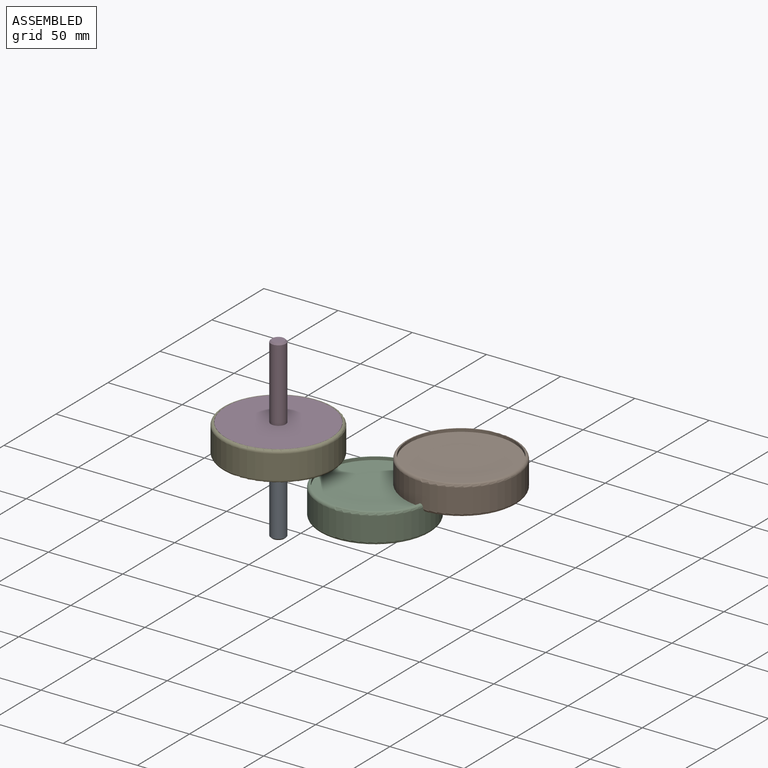
[diagram: assembled view]
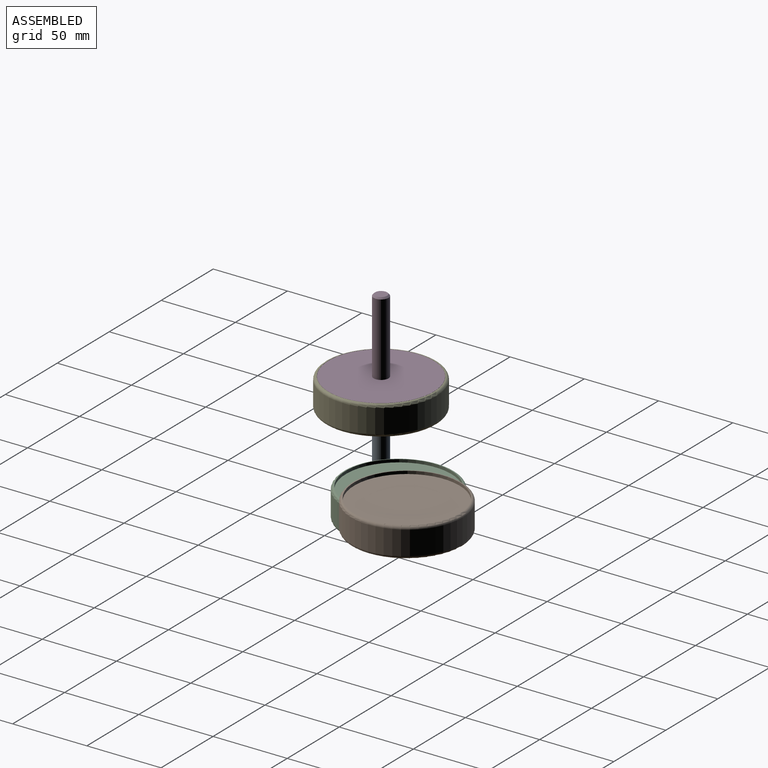
[diagram: assembled view, second angle]
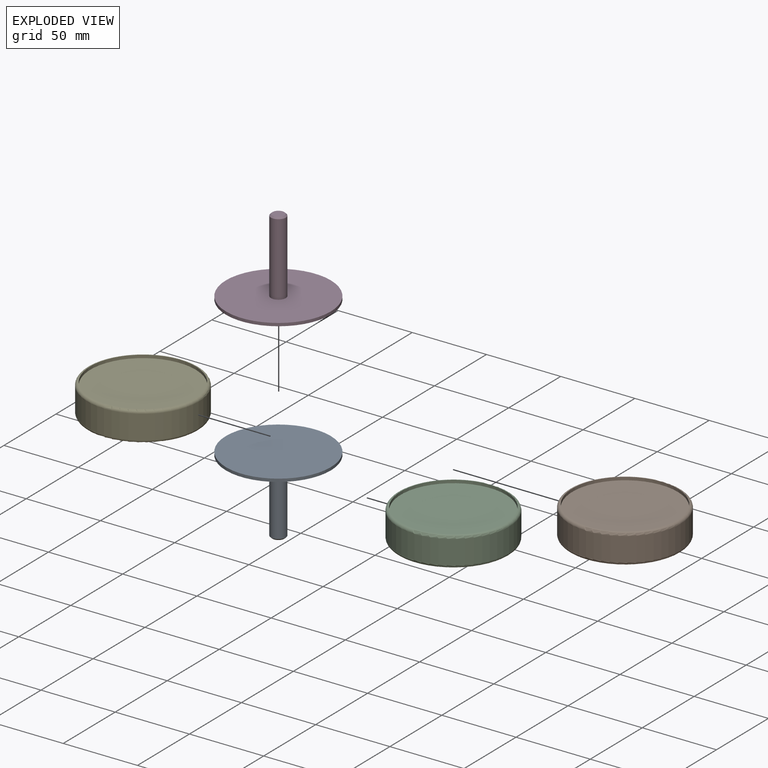
[diagram: exploded view]
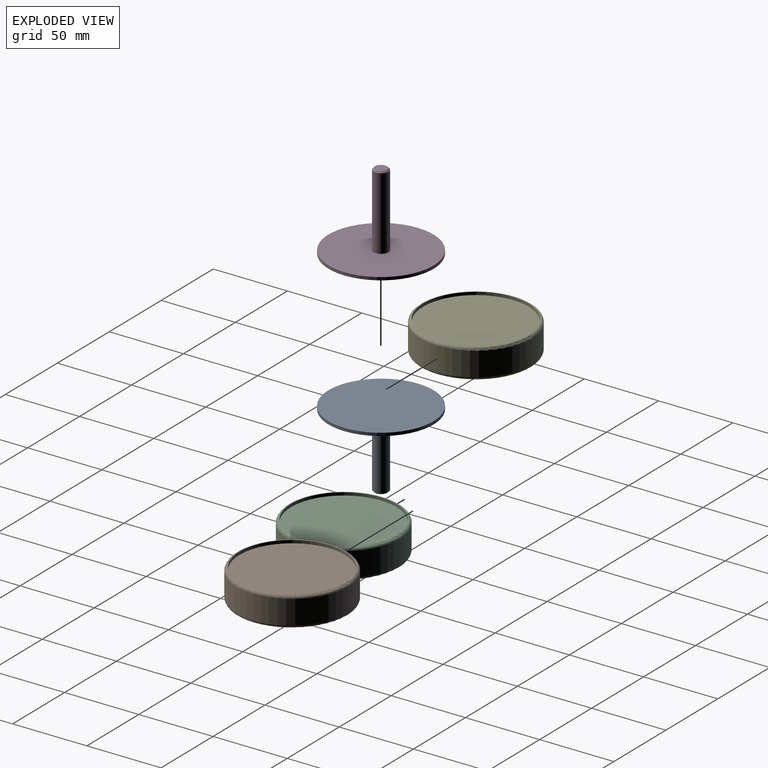
[diagram: exploded view, second angle]
ASSEMBLY  parts=3 mates=2
PART A: 6 faces, bbox 70.8x70.8x52 mm
  f0: cylinder r=35.38mm len=70.75mm, axis (0,0,-1), area 444.5mm2, adj f1,f2
  f1: plane 70.75x70.75mm, normal (0,0,1), area 3852.8mm2, adj f0,f3
  f2: plane 70.75x70.75mm, normal (0,0,-1), area 3931.4mm2, adj f0
  f3: cylinder r=5mm len=49mm, axis (0,0,-1), area 1539.4mm2, adj f1,f5
  f4: plane 8x8mm, normal (0,0,1), area 50.3mm2, adj f5
  f5: cone r=4mm half-angle=45deg, axis (0,0,-1), area 40mm2, adj f3,f4
PART B: same geometry as A
PART C: 7 faces, bbox 81.2x81.2x20 mm
  f0: cylinder r=37.5mm len=75mm, axis (0,0,-1), area 3769.9mm2, adj f1,f2
  f1: torus R=35.5mm, axis (0,0,1), area 725.9mm2, adj f0,f5
  f2: torus R=35.5mm, axis (0,0,1), area 725.9mm2, adj f0,f3
  f3: cylinder r=35.5mm len=71mm, axis (0,0,-1), area 446.1mm2, adj f2,f4
  f4: plane 71x71mm, normal (0,0,-1), area 3959.2mm2, adj f3
  f5: cylinder r=35.5mm len=71mm, axis (0,0,1), area 446.1mm2, adj f1,f6
  f6: plane 71x71mm, normal (0,0,1), area 3959.2mm2, adj f5
PLACE A rot(axis=(1,0,0),180deg) t=(-38.14,-38.54,44.16)mm
PLACE B t=(-38.14,-38.54,60.16)mm
PLACE C rot(axis=(1,0,0),180deg) t=(-38.14,-38.54,62.16)mm
MATE fastened C.f3 <-> B.f0  axis (0,0,-1) through (-38.14,-38.54,62.16)mm
MATE fastened A.f0 <-> C.f0  axis (0,0,1) through (-38.14,-38.54,44.16)mm
